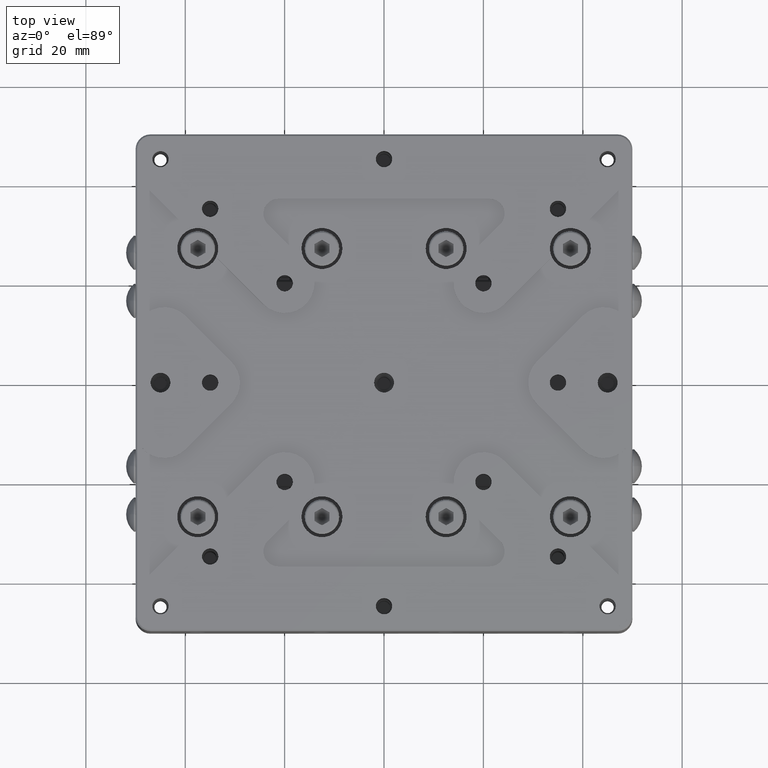
[diagram: clean part render]
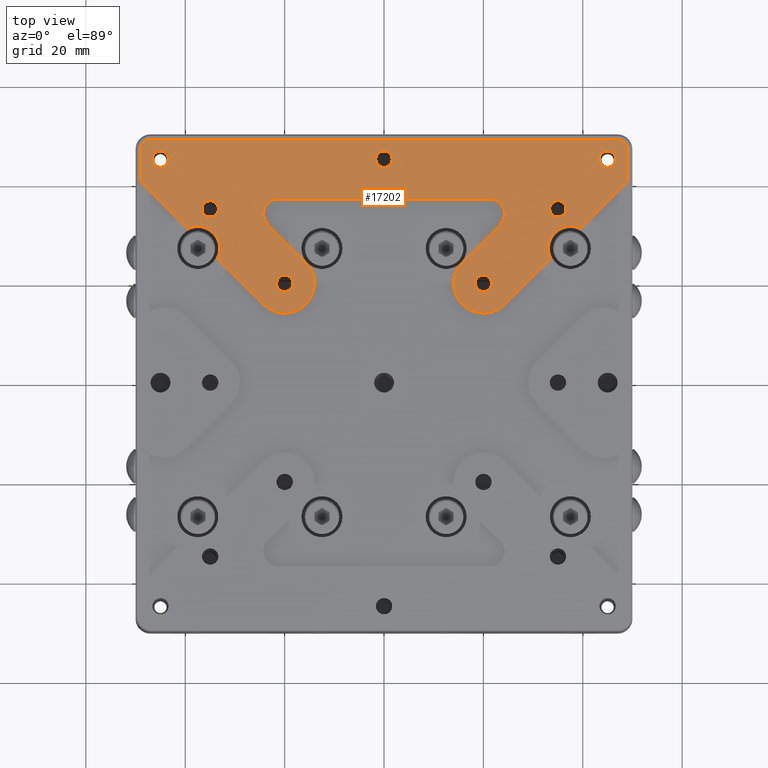
[diagram: same view with one face highlighted and labeled with its STEP entity id]
A machine part, top view. The second image highlights one B-rep face of the part: STEP entity #17202.
In plain terms, the highlighted planar face has unit normal (0, 0, 1).
Its self-contained STEP definition (entity closure, byte-faithful):
#4 = CIRCLE ( 'NONE', #472, 1.649999999999998579 ) ;
#140 = VERTEX_POINT ( 'NONE', #27121 ) ;
#215 = AXIS2_PLACEMENT_3D ( 'NONE', #11590, #5575, #14355 ) ;
#408 = LINE ( 'NONE', #15042, #24687 ) ;
#423 = VERTEX_POINT ( 'NONE', #8501 ) ;
#471 = LINE ( 'NONE', #26034, #18040 ) ;
#472 = AXIS2_PLACEMENT_3D ( 'NONE', #5367, #9293, #11525 ) ;
#671 = EDGE_CURVE ( 'NONE', #20192, #14774, #14392, .T. ) ;
#675 = DIRECTION ( 'NONE',  ( 1.000000000000000000, 0.000000000000000000, 0.000000000000000000 ) ) ;
#807 = EDGE_CURVE ( 'NONE', #20196, #20192, #6365, .T. ) ;
#862 = AXIS2_PLACEMENT_3D ( 'NONE', #22239, #11456, #2793 ) ;
#868 = ORIENTED_EDGE ( 'NONE', *, *, #1262, .T. ) ;
#1100 = CARTESIAN_POINT ( 'NONE',  ( 37.50000000000000000, 27.00000000000000000, 15.50000000000000000 ) ) ;
#1108 = VERTEX_POINT ( 'NONE', #22036 ) ;
#1174 = ORIENTED_EDGE ( 'NONE', *, *, #3505, .T. ) ;
#1232 = ORIENTED_EDGE ( 'NONE', *, *, #21920, .T. ) ;
#1262 = EDGE_CURVE ( 'NONE', #2068, #18202, #7882, .T. ) ;
#1428 = DIRECTION ( 'NONE',  ( 0.000000000000000000, 0.000000000000000000, -1.000000000000000000 ) ) ;
#1512 = DIRECTION ( 'NONE',  ( 0.7071067811869200526, -0.7071067811861749819, 0.000000000000000000 ) ) ;
#1547 = CARTESIAN_POINT ( 'NONE',  ( -21.27207793863999896, 34.00000000000000000, 15.50000000000000000 ) ) ;
#1582 = CARTESIAN_POINT ( 'NONE',  ( -23.39339828219985051, 31.87867965644020174, 15.50000000000000000 ) ) ;
#1595 = CARTESIAN_POINT ( 'NONE',  ( 33.47432539299094856, 24.98904401876064796, 15.50000000000000000 ) ) ;
#1622 = CARTESIAN_POINT ( 'NONE',  ( 35.00000000000000000, 35.00000000000000000, 15.50000000000000000 ) ) ;
#1691 = CARTESIAN_POINT ( 'NONE',  ( 23.39339828219999973, 31.87867965643999923, 15.50000000000000000 ) ) ;
#1721 = CIRCLE ( 'NONE', #18208, 2.999999999999999112 ) ;
#1723 = VECTOR ( 'NONE', #16289, 1000.000000000000000 ) ;
#1751 = DIRECTION ( 'NONE',  ( -0.7071067811865474617, -0.7071067811865474617, 0.000000000000000000 ) ) ;
#1841 = DIRECTION ( 'NONE',  ( 0.7071067811861645458, 0.7071067811869305997, 0.000000000000000000 ) ) ;
#2027 = CIRCLE ( 'NONE', #6947, 1.649999999999998579 ) ;
#2068 = VERTEX_POINT ( 'NONE', #1691 ) ;
#2125 = DIRECTION ( 'NONE',  ( -0.7071067811865480168, 0.7071067811865470176, 0.000000000000000000 ) ) ;
#2267 = CARTESIAN_POINT ( 'NONE',  ( -21.64999999999999858, 20.00000000000000000, 15.50000000000000000 ) ) ;
#2302 = DIRECTION ( 'NONE',  ( 0.000000000000000000, 0.000000000000000000, -1.000000000000000000 ) ) ;
#2337 = FACE_BOUND ( 'NONE', #12126, .T. ) ;
#2475 = DIRECTION ( 'NONE',  ( 0.000000000000000000, 0.000000000000000000, -1.000000000000000000 ) ) ;
#2555 = ORIENTED_EDGE ( 'NONE', *, *, #5559, .T. ) ;
#2605 = EDGE_CURVE ( 'NONE', #27199, #21379, #22049, .T. ) ;
#2628 = EDGE_LOOP ( 'NONE', ( #1174, #26637 ) ) ;
#2637 = AXIS2_PLACEMENT_3D ( 'NONE', #18574, #14095, #27118 ) ;
#2687 = CARTESIAN_POINT ( 'NONE',  ( -39.51095598123934849, 31.02567460700910118, 15.50000000000000000 ) ) ;
#2766 = ORIENTED_EDGE ( 'NONE', *, *, #3122, .T. ) ;
#2793 = DIRECTION ( 'NONE',  ( 1.000000000000000000, 0.000000000000000000, 0.000000000000000000 ) ) ;
#2815 = AXIS2_PLACEMENT_3D ( 'NONE', #22343, #3175, #17989 ) ;
#2843 = AXIS2_PLACEMENT_3D ( 'NONE', #20564, #1428, #5735 ) ;
#2854 = VECTOR ( 'NONE', #14143, 1000.000000000000000 ) ;
#2883 = EDGE_CURVE ( 'NONE', #11598, #11470, #8125, .T. ) ;
#3068 = CIRCLE ( 'NONE', #6634, 2.999999999999999112 ) ;
#3122 = EDGE_CURVE ( 'NONE', #24848, #27341, #471, .T. ) ;
#3146 = ORIENTED_EDGE ( 'NONE', *, *, #671, .T. ) ;
#3174 = DIRECTION ( 'NONE',  ( -1.000000000000000000, 0.000000000000000000, 0.000000000000000000 ) ) ;
#3175 = DIRECTION ( 'NONE',  ( 0.000000000000000000, 0.000000000000000000, -1.000000000000000000 ) ) ;
#3256 = LINE ( 'NONE', #7586, #9092 ) ;
#3405 = DIRECTION ( 'NONE',  ( 1.000000000000000000, 0.000000000000000000, 0.000000000000000000 ) ) ;
#3461 = DIRECTION ( 'NONE',  ( 1.000000000000000000, 0.000000000000000000, 0.000000000000000000 ) ) ;
#3505 = EDGE_CURVE ( 'NONE', #13997, #11284, #3769, .T. ) ;
#3507 = CARTESIAN_POINT ( 'NONE',  ( 33.00000000000000000, 27.00000000000000000, 15.50000000000000000 ) ) ;
#3524 = CARTESIAN_POINT ( 'NONE',  ( 21.27207793863999896, 37.00000000000000000, 15.50000000000000000 ) ) ;
#3545 = DIRECTION ( 'NONE',  ( 0.000000000000000000, 0.000000000000000000, -1.000000000000000000 ) ) ;
#3620 = DIRECTION ( 'NONE',  ( 0.000000000000000000, 0.000000000000000000, -1.000000000000000000 ) ) ;
#3720 = CARTESIAN_POINT ( 'NONE',  ( -49.00000000000000000, 40.51471862575999694, 15.50000000000000000 ) ) ;
#3769 = CIRCLE ( 'NONE', #24319, 1.649999999999998579 ) ;
#3864 = ORIENTED_EDGE ( 'NONE', *, *, #15248, .T. ) ;
#3911 = CIRCLE ( 'NONE', #24467, 1.649999999999998579 ) ;
#3934 = CARTESIAN_POINT ( 'NONE',  ( -36.64999999999999858, 35.00000000000000000, 15.50000000000000000 ) ) ;
#3964 = EDGE_CURVE ( 'NONE', #16226, #13413, #24799, .T. ) ;
#4152 = FACE_BOUND ( 'NONE', #17078, .T. ) ;
#4610 = VECTOR ( 'NONE', #1751, 1000.000000000000114 ) ;
#4895 = CARTESIAN_POINT ( 'NONE',  ( 21.27207793863999896, 34.00000000000000000, 15.50000000000000000 ) ) ;
#4995 = DIRECTION ( 'NONE',  ( 0.000000000000000000, 0.000000000000000000, -1.000000000000000000 ) ) ;
#5133 = ORIENTED_EDGE ( 'NONE', *, *, #24045, .T. ) ;
#5367 = CARTESIAN_POINT ( 'NONE',  ( 20.00000000000000000, 20.00000000000000000, 15.50000000000000000 ) ) ;
#5499 = AXIS2_PLACEMENT_3D ( 'NONE', #1622, #5927, #16819 ) ;
#5509 = VERTEX_POINT ( 'NONE', #13945 ) ;
#5559 = EDGE_CURVE ( 'NONE', #11470, #16792, #11006, .T. ) ;
#5575 = DIRECTION ( 'NONE',  ( 0.000000000000000000, 0.000000000000000000, 1.000000000000000000 ) ) ;
#5735 = DIRECTION ( 'NONE',  ( 1.000000000000000000, 0.000000000000000000, 0.000000000000000000 ) ) ;
#5864 = DIRECTION ( 'NONE',  ( -1.000000000000000000, 0.000000000000000000, 0.000000000000000000 ) ) ;
#5923 = EDGE_LOOP ( 'NONE', ( #10687, #13077 ) ) ;
#5927 = DIRECTION ( 'NONE',  ( 0.000000000000000000, 0.000000000000000000, -1.000000000000000000 ) ) ;
#6011 = VERTEX_POINT ( 'NONE', #8040 ) ;
#6033 = ORIENTED_EDGE ( 'NONE', *, *, #26324, .T. ) ;
#6078 = DIRECTION ( 'NONE',  ( 1.000000000000000000, 0.000000000000000000, 0.000000000000000000 ) ) ;
#6365 = LINE ( 'NONE', #3720, #26042 ) ;
#6521 = DIRECTION ( 'NONE',  ( 1.000000000000000000, 0.000000000000000000, 0.000000000000000000 ) ) ;
#6529 = FACE_BOUND ( 'NONE', #16120, .T. ) ;
#6533 = AXIS2_PLACEMENT_3D ( 'NONE', #26971, #11853, #20386 ) ;
#6551 = ORIENTED_EDGE ( 'NONE', *, *, #12178, .T. ) ;
#6634 = AXIS2_PLACEMENT_3D ( 'NONE', #4895, #9628, #13412 ) ;
#6671 = FACE_BOUND ( 'NONE', #7598, .T. ) ;
#6833 = DIRECTION ( 'NONE',  ( 1.000000000000000000, 0.000000000000000000, 0.000000000000000000 ) ) ;
#6872 = CIRCLE ( 'NONE', #215, 6.000000000000000000 ) ;
#6945 = ORIENTED_EDGE ( 'NONE', *, *, #23659, .T. ) ;
#6947 = AXIS2_PLACEMENT_3D ( 'NONE', #16165, #8190, #10290 ) ;
#7152 = ORIENTED_EDGE ( 'NONE', *, *, #7171, .T. ) ;
#7171 = EDGE_CURVE ( 'NONE', #24566, #24848, #9750, .T. ) ;
#7236 = EDGE_CURVE ( 'NONE', #19551, #2068, #3068, .T. ) ;
#7375 = EDGE_CURVE ( 'NONE', #18202, #5509, #12888, .T. ) ;
#7410 = CARTESIAN_POINT ( 'NONE',  ( 47.00000000000000000, 49.00000000000000000, 15.50000000000000000 ) ) ;
#7539 = ORIENTED_EDGE ( 'NONE', *, *, #17517, .T. ) ;
#7586 = CARTESIAN_POINT ( 'NONE',  ( -33.47432539299000354, 24.98904401875999781, 15.50000000000000000 ) ) ;
#7593 = DIRECTION ( 'NONE',  ( 0.000000000000000000, 0.000000000000000000, 1.000000000000000000 ) ) ;
#7598 = EDGE_LOOP ( 'NONE', ( #6945, #17411 ) ) ;
#7758 = EDGE_CURVE ( 'NONE', #16525, #13983, #18777, .T. ) ;
#7787 = CARTESIAN_POINT ( 'NONE',  ( 35.00000000000000000, 35.00000000000000000, 15.50000000000000000 ) ) ;
#7848 = ORIENTED_EDGE ( 'NONE', *, *, #25615, .T. ) ;
#7882 = LINE ( 'NONE', #27601, #4610 ) ;
#7966 = CIRCLE ( 'NONE', #23601, 2.000000000000001776 ) ;
#8040 = CARTESIAN_POINT ( 'NONE',  ( 43.35000000000000142, 45.00000000000000000, 15.50000000000000000 ) ) ;
#8125 = LINE ( 'NONE', #8267, #2854 ) ;
#8190 = DIRECTION ( 'NONE',  ( 0.000000000000000000, 0.000000000000000000, -1.000000000000000000 ) ) ;
#8267 = CARTESIAN_POINT ( 'NONE',  ( -50.00000000000000000, 49.00000000000000000, 15.50000000000000000 ) ) ;
#8314 = DIRECTION ( 'NONE',  ( 0.000000000000000000, 0.000000000000000000, -1.000000000000000000 ) ) ;
#8351 = DIRECTION ( 'NONE',  ( 0.000000000000000000, -1.000000000000000000, 0.000000000000000000 ) ) ;
#8501 = CARTESIAN_POINT ( 'NONE',  ( 21.64999999999999858, 20.00000000000000000, 15.50000000000000000 ) ) ;
#8894 = DIRECTION ( 'NONE',  ( 0.000000000000000000, 0.000000000000000000, -1.000000000000000000 ) ) ;
#9079 = CARTESIAN_POINT ( 'NONE',  ( -49.00000000000000000, 47.00000000000000000, 15.50000000000000000 ) ) ;
#9092 = VECTOR ( 'NONE', #9821, 1000.000000000000000 ) ;
#9293 = DIRECTION ( 'NONE',  ( 0.000000000000000000, 0.000000000000000000, -1.000000000000000000 ) ) ;
#9330 = CARTESIAN_POINT ( 'NONE',  ( -21.27207793863999896, 34.00000000000000000, 15.50000000000000000 ) ) ;
#9393 = CARTESIAN_POINT ( 'NONE',  ( 36.64999999999999858, 35.00000000000000000, 15.50000000000000000 ) ) ;
#9628 = DIRECTION ( 'NONE',  ( 0.000000000000000000, 0.000000000000000000, -1.000000000000000000 ) ) ;
#9697 = VERTEX_POINT ( 'NONE', #26308 ) ;
#9750 = CIRCLE ( 'NONE', #862, 6.000000000000000000 ) ;
#9821 = DIRECTION ( 'NONE',  ( 0.7071067811861645458, -0.7071067811869305997, 0.000000000000000000 ) ) ;
#9978 = CIRCLE ( 'NONE', #2843, 1.649999999999998579 ) ;
#10204 = DIRECTION ( 'NONE',  ( 0.000000000000000000, 0.000000000000000000, -1.000000000000000000 ) ) ;
#10290 = DIRECTION ( 'NONE',  ( 1.000000000000000000, 0.000000000000000000, 0.000000000000000000 ) ) ;
#10323 = AXIS2_PLACEMENT_3D ( 'NONE', #14872, #8314, #25808 ) ;
#10478 = AXIS2_PLACEMENT_3D ( 'NONE', #1547, #3620, #16195 ) ;
#10615 = CARTESIAN_POINT ( 'NONE',  ( 37.50000000000000000, 27.00000000000000000, 15.50000000000000000 ) ) ;
#10625 = CARTESIAN_POINT ( 'NONE',  ( -33.47432539299290255, 24.98904401875790171, 15.50000000000000000 ) ) ;
#10687 = ORIENTED_EDGE ( 'NONE', *, *, #15940, .T. ) ;
#10715 = DIRECTION ( 'NONE',  ( 1.000000000000000000, 0.000000000000000000, 0.000000000000000000 ) ) ;
#10784 = ORIENTED_EDGE ( 'NONE', *, *, #12240, .T. ) ;
#10823 = CARTESIAN_POINT ( 'NONE',  ( -20.00000000000000000, 20.00000000000000000, 15.50000000000000000 ) ) ;
#10864 = FACE_BOUND ( 'NONE', #5923, .T. ) ;
#10935 = CARTESIAN_POINT ( 'NONE',  ( 1.649999999999999911, 45.00000000000000000, 15.50000000000000000 ) ) ;
#10945 = VERTEX_POINT ( 'NONE', #15274 ) ;
#11006 = CIRCLE ( 'NONE', #6533, 2.000000000000001776 ) ;
#11008 = CARTESIAN_POINT ( 'NONE',  ( -24.27207793864000251, 34.00000000000000000, 15.50000000000000000 ) ) ;
#11124 = ORIENTED_EDGE ( 'NONE', *, *, #17555, .T. ) ;
#11143 = CARTESIAN_POINT ( 'NONE',  ( -15.75735931287999847, 24.24264068711999798, 15.50000000000000000 ) ) ;
#11231 = CIRCLE ( 'NONE', #10323, 1.649999999999999911 ) ;
#11284 = VERTEX_POINT ( 'NONE', #3934 ) ;
#11450 = CARTESIAN_POINT ( 'NONE',  ( -14.00000000000000000, 20.00000000000000000, 15.50000000000000000 ) ) ;
#11456 = DIRECTION ( 'NONE',  ( 0.000000000000000000, 0.000000000000000000, 1.000000000000000000 ) ) ;
#11470 = VERTEX_POINT ( 'NONE', #21702 ) ;
#11525 = DIRECTION ( 'NONE',  ( 1.000000000000000000, 0.000000000000000000, 0.000000000000000000 ) ) ;
#11564 = DIRECTION ( 'NONE',  ( 0.000000000000000000, 0.000000000000000000, -1.000000000000000000 ) ) ;
#11590 = CARTESIAN_POINT ( 'NONE',  ( -20.00000000000000000, 20.00000000000000000, 15.50000000000000000 ) ) ;
#11598 = VERTEX_POINT ( 'NONE', #7410 ) ;
#11620 = CARTESIAN_POINT ( 'NONE',  ( -49.00000000000000000, 40.51471862575999694, 15.50000000000000000 ) ) ;
#11791 = DIRECTION ( 'NONE',  ( -1.000000000000000000, 0.000000000000000000, 0.000000000000000000 ) ) ;
#11815 = VECTOR ( 'NONE', #8351, 1000.000000000000000 ) ;
#11853 = DIRECTION ( 'NONE',  ( 0.000000000000000000, 0.000000000000000000, 1.000000000000000000 ) ) ;
#11888 = ORIENTED_EDGE ( 'NONE', *, *, #807, .T. ) ;
#11975 = VERTEX_POINT ( 'NONE', #10935 ) ;
#12126 = EDGE_LOOP ( 'NONE', ( #26538, #20200 ) ) ;
#12178 = EDGE_CURVE ( 'NONE', #25082, #18723, #14378, .T. ) ;
#12237 = CARTESIAN_POINT ( 'NONE',  ( -43.35000000000000142, 45.00000000000000000, 15.50000000000000000 ) ) ;
#12240 = EDGE_CURVE ( 'NONE', #10945, #19551, #408, .T. ) ;
#12266 = CIRCLE ( 'NONE', #10478, 2.999999999999999112 ) ;
#12395 = CARTESIAN_POINT ( 'NONE',  ( 49.00000000000000000, 47.00000000000000000, 15.50000000000000000 ) ) ;
#12543 = AXIS2_PLACEMENT_3D ( 'NONE', #15333, #17289, #27515 ) ;
#12669 = PLANE ( 'NONE',  #12543 ) ;
#12690 = VECTOR ( 'NONE', #1841, 1000.000000000000000 ) ;
#12807 = FACE_BOUND ( 'NONE', #2628, .T. ) ;
#12876 = CIRCLE ( 'NONE', #13781, 1.649999999999999911 ) ;
#12888 = CIRCLE ( 'NONE', #2637, 6.000000000000001776 ) ;
#12904 = EDGE_CURVE ( 'NONE', #14774, #9697, #3256, .T. ) ;
#12950 = FACE_BOUND ( 'NONE', #24737, .T. ) ;
#13077 = ORIENTED_EDGE ( 'NONE', *, *, #24488, .T. ) ;
#13166 = CARTESIAN_POINT ( 'NONE',  ( -20.00000000000000000, 20.00000000000000000, 15.50000000000000000 ) ) ;
#13312 = CARTESIAN_POINT ( 'NONE',  ( -1.649999999999999911, 45.00000000000000000, 15.50000000000000000 ) ) ;
#13334 = ORIENTED_EDGE ( 'NONE', *, *, #25583, .T. ) ;
#13412 = DIRECTION ( 'NONE',  ( -1.000000000000000000, 0.000000000000000000, 0.000000000000000000 ) ) ;
#13413 = VERTEX_POINT ( 'NONE', #3507 ) ;
#13415 = EDGE_CURVE ( 'NONE', #18723, #25082, #9978, .T. ) ;
#13683 = CARTESIAN_POINT ( 'NONE',  ( 15.75735931288034841, 24.24264068711964981, 15.50000000000000000 ) ) ;
#13781 = AXIS2_PLACEMENT_3D ( 'NONE', #20324, #3545, #3405 ) ;
#13945 = CARTESIAN_POINT ( 'NONE',  ( 24.24264068712115261, 15.75735931288114955, 15.50000000000000000 ) ) ;
#13983 = VERTEX_POINT ( 'NONE', #12395 ) ;
#13997 = VERTEX_POINT ( 'NONE', #18832 ) ;
#14095 = DIRECTION ( 'NONE',  ( 0.000000000000000000, 0.000000000000000000, 1.000000000000000000 ) ) ;
#14131 = LINE ( 'NONE', #27291, #12690 ) ;
#14143 = DIRECTION ( 'NONE',  ( -1.000000000000000000, 0.000000000000000000, 0.000000000000000000 ) ) ;
#14295 = DIRECTION ( 'NONE',  ( 0.000000000000000000, 1.000000000000000000, 0.000000000000000000 ) ) ;
#14321 = CIRCLE ( 'NONE', #15698, 1.649999999999998579 ) ;
#14355 = DIRECTION ( 'NONE',  ( 1.000000000000000000, 0.000000000000000000, 0.000000000000000000 ) ) ;
#14378 = CIRCLE ( 'NONE', #25555, 1.649999999999998579 ) ;
#14392 = CIRCLE ( 'NONE', #2815, 4.499999999999997335 ) ;
#14701 = ORIENTED_EDGE ( 'NONE', *, *, #21554, .T. ) ;
#14774 = VERTEX_POINT ( 'NONE', #10625 ) ;
#14872 = CARTESIAN_POINT ( 'NONE',  ( 0.000000000000000000, 45.00000000000000000, 15.50000000000000000 ) ) ;
#14877 = CIRCLE ( 'NONE', #18524, 1.649999999999998579 ) ;
#15042 = CARTESIAN_POINT ( 'NONE',  ( -50.00000000000000000, 37.00000000000000000, 15.50000000000000000 ) ) ;
#15080 = EDGE_CURVE ( 'NONE', #9697, #24566, #6872, .T. ) ;
#15248 = EDGE_CURVE ( 'NONE', #16792, #20196, #23049, .T. ) ;
#15274 = CARTESIAN_POINT ( 'NONE',  ( -21.27207793863999896, 37.00000000000000000, 15.50000000000000000 ) ) ;
#15333 = CARTESIAN_POINT ( 'NONE',  ( -50.00000000000000000, 50.00000000000000000, 15.50000000000000000 ) ) ;
#15698 = AXIS2_PLACEMENT_3D ( 'NONE', #10823, #2302, #6078 ) ;
#15940 = EDGE_CURVE ( 'NONE', #423, #1108, #4, .T. ) ;
#16120 = EDGE_LOOP ( 'NONE', ( #26470, #6551 ) ) ;
#16165 = CARTESIAN_POINT ( 'NONE',  ( 45.00000000000000000, 45.00000000000000000, 15.50000000000000000 ) ) ;
#16173 = DIRECTION ( 'NONE',  ( 0.000000000000000000, 0.000000000000000000, -1.000000000000000000 ) ) ;
#16195 = DIRECTION ( 'NONE',  ( -1.000000000000000000, 0.000000000000000000, 0.000000000000000000 ) ) ;
#16226 = VERTEX_POINT ( 'NONE', #1595 ) ;
#16261 = ORIENTED_EDGE ( 'NONE', *, *, #2883, .T. ) ;
#16289 = DIRECTION ( 'NONE',  ( 0.7071067811869200526, 0.7071067811861749819, 0.000000000000000000 ) ) ;
#16301 = ORIENTED_EDGE ( 'NONE', *, *, #25070, .T. ) ;
#16525 = VERTEX_POINT ( 'NONE', #24772 ) ;
#16705 = CARTESIAN_POINT ( 'NONE',  ( -46.64999999999999858, 45.00000000000000000, 15.50000000000000000 ) ) ;
#16730 = AXIS2_PLACEMENT_3D ( 'NONE', #10615, #10204, #5864 ) ;
#16792 = VERTEX_POINT ( 'NONE', #9079 ) ;
#16819 = DIRECTION ( 'NONE',  ( 1.000000000000000000, 0.000000000000000000, 0.000000000000000000 ) ) ;
#16830 = CIRCLE ( 'NONE', #23100, 1.649999999999998579 ) ;
#16864 = CARTESIAN_POINT ( 'NONE',  ( -45.00000000000000000, 45.00000000000000000, 15.50000000000000000 ) ) ;
#16870 = FACE_OUTER_BOUND ( 'NONE', #25803, .T. ) ;
#16913 = ORIENTED_EDGE ( 'NONE', *, *, #15080, .T. ) ;
#17078 = EDGE_LOOP ( 'NONE', ( #7539, #5133 ) ) ;
#17202 = ADVANCED_FACE ( 'NONE', ( #16870, #6529, #12950, #2337, #12807, #6671, #4152, #10864 ), #12669, .T. ) ;
#17289 = DIRECTION ( 'NONE',  ( 0.000000000000000000, 0.000000000000000000, 1.000000000000000000 ) ) ;
#17315 = CARTESIAN_POINT ( 'NONE',  ( -35.00000000000000000, 35.00000000000000000, 15.50000000000000000 ) ) ;
#17411 = ORIENTED_EDGE ( 'NONE', *, *, #2605, .T. ) ;
#17517 = EDGE_CURVE ( 'NONE', #20045, #24118, #14321, .T. ) ;
#17555 = EDGE_CURVE ( 'NONE', #25872, #11975, #11231, .T. ) ;
#17766 = CIRCLE ( 'NONE', #21351, 4.499999999999997335 ) ;
#17882 = DIRECTION ( 'NONE',  ( 0.000000000000000000, 0.000000000000000000, -1.000000000000000000 ) ) ;
#17989 = DIRECTION ( 'NONE',  ( -1.000000000000000000, 0.000000000000000000, 0.000000000000000000 ) ) ;
#18040 = VECTOR ( 'NONE', #2125, 1000.000000000000000 ) ;
#18202 = VERTEX_POINT ( 'NONE', #13683 ) ;
#18208 = AXIS2_PLACEMENT_3D ( 'NONE', #9330, #4995, #26680 ) ;
#18501 = CARTESIAN_POINT ( 'NONE',  ( 47.00000000000000000, 47.00000000000000000, 15.50000000000000000 ) ) ;
#18524 = AXIS2_PLACEMENT_3D ( 'NONE', #24332, #19708, #26016 ) ;
#18574 = CARTESIAN_POINT ( 'NONE',  ( 20.00000000000000000, 20.00000000000000000, 15.50000000000000000 ) ) ;
#18676 = CARTESIAN_POINT ( 'NONE',  ( 39.51095598124000219, 31.02567460701000002, 15.50000000000000000 ) ) ;
#18723 = VERTEX_POINT ( 'NONE', #12237 ) ;
#18777 = LINE ( 'NONE', #21018, #23654 ) ;
#18832 = CARTESIAN_POINT ( 'NONE',  ( -33.34999999999999432, 35.00000000000000000, 15.50000000000000000 ) ) ;
#19042 = DIRECTION ( 'NONE',  ( 0.000000000000000000, 0.000000000000000000, -1.000000000000000000 ) ) ;
#19175 = ORIENTED_EDGE ( 'NONE', *, *, #3964, .T. ) ;
#19230 = CARTESIAN_POINT ( 'NONE',  ( -18.35000000000000142, 20.00000000000000000, 15.50000000000000000 ) ) ;
#19496 = AXIS2_PLACEMENT_3D ( 'NONE', #7787, #16173, #3461 ) ;
#19522 = CIRCLE ( 'NONE', #20868, 1.649999999999998579 ) ;
#19551 = VERTEX_POINT ( 'NONE', #3524 ) ;
#19708 = DIRECTION ( 'NONE',  ( 0.000000000000000000, 0.000000000000000000, -1.000000000000000000 ) ) ;
#20045 = VERTEX_POINT ( 'NONE', #19230 ) ;
#20079 = ORIENTED_EDGE ( 'NONE', *, *, #26386, .T. ) ;
#20192 = VERTEX_POINT ( 'NONE', #2687 ) ;
#20196 = VERTEX_POINT ( 'NONE', #11620 ) ;
#20200 = ORIENTED_EDGE ( 'NONE', *, *, #22439, .T. ) ;
#20324 = CARTESIAN_POINT ( 'NONE',  ( 0.000000000000000000, 45.00000000000000000, 15.50000000000000000 ) ) ;
#20386 = DIRECTION ( 'NONE',  ( -1.000000000000000000, 0.000000000000000000, 0.000000000000000000 ) ) ;
#20564 = CARTESIAN_POINT ( 'NONE',  ( -45.00000000000000000, 45.00000000000000000, 15.50000000000000000 ) ) ;
#20579 = ORIENTED_EDGE ( 'NONE', *, *, #7375, .T. ) ;
#20617 = EDGE_CURVE ( 'NONE', #140, #6011, #14877, .T. ) ;
#20847 = CIRCLE ( 'NONE', #19496, 1.649999999999998579 ) ;
#20868 = AXIS2_PLACEMENT_3D ( 'NONE', #13166, #19042, #23377 ) ;
#21018 = CARTESIAN_POINT ( 'NONE',  ( 49.00000000000000000, 50.00000000000000000, 15.50000000000000000 ) ) ;
#21021 = VERTEX_POINT ( 'NONE', #11008 ) ;
#21113 = CARTESIAN_POINT ( 'NONE',  ( 39.51095598123934849, 31.02567460700910118, 15.50000000000000000 ) ) ;
#21351 = AXIS2_PLACEMENT_3D ( 'NONE', #1100, #11564, #3174 ) ;
#21379 = VERTEX_POINT ( 'NONE', #9393 ) ;
#21554 = EDGE_CURVE ( 'NONE', #5509, #16226, #14131, .T. ) ;
#21702 = CARTESIAN_POINT ( 'NONE',  ( -47.00000000000000000, 49.00000000000000000, 15.50000000000000000 ) ) ;
#21920 = EDGE_CURVE ( 'NONE', #27341, #21021, #12266, .T. ) ;
#22007 = CARTESIAN_POINT ( 'NONE',  ( 33.34999999999999432, 35.00000000000000000, 15.50000000000000000 ) ) ;
#22036 = CARTESIAN_POINT ( 'NONE',  ( 18.35000000000000142, 20.00000000000000000, 15.50000000000000000 ) ) ;
#22049 = CIRCLE ( 'NONE', #5499, 1.649999999999998579 ) ;
#22239 = CARTESIAN_POINT ( 'NONE',  ( -20.00000000000000000, 20.00000000000000000, 15.50000000000000000 ) ) ;
#22343 = CARTESIAN_POINT ( 'NONE',  ( -37.50000000000000000, 27.00000000000000000, 15.50000000000000000 ) ) ;
#22439 = EDGE_CURVE ( 'NONE', #6011, #140, #2027, .T. ) ;
#22912 = CARTESIAN_POINT ( 'NONE',  ( -49.00000000000000000, 50.00000000000000000, 15.50000000000000000 ) ) ;
#23049 = LINE ( 'NONE', #22912, #11815 ) ;
#23100 = AXIS2_PLACEMENT_3D ( 'NONE', #26383, #8894, #675 ) ;
#23377 = DIRECTION ( 'NONE',  ( 1.000000000000000000, 0.000000000000000000, 0.000000000000000000 ) ) ;
#23601 = AXIS2_PLACEMENT_3D ( 'NONE', #18501, #7593, #11791 ) ;
#23654 = VECTOR ( 'NONE', #14295, 1000.000000000000000 ) ;
#23659 = EDGE_CURVE ( 'NONE', #21379, #27199, #20847, .T. ) ;
#23742 = ORIENTED_EDGE ( 'NONE', *, *, #7236, .T. ) ;
#23920 = EDGE_CURVE ( 'NONE', #11284, #13997, #16830, .T. ) ;
#24045 = EDGE_CURVE ( 'NONE', #24118, #20045, #19522, .T. ) ;
#24118 = VERTEX_POINT ( 'NONE', #2267 ) ;
#24202 = VERTEX_POINT ( 'NONE', #21113 ) ;
#24319 = AXIS2_PLACEMENT_3D ( 'NONE', #17315, #25441, #6833 ) ;
#24332 = CARTESIAN_POINT ( 'NONE',  ( 45.00000000000000000, 45.00000000000000000, 15.50000000000000000 ) ) ;
#24467 = AXIS2_PLACEMENT_3D ( 'NONE', #26838, #17882, #26427 ) ;
#24488 = EDGE_CURVE ( 'NONE', #1108, #423, #3911, .T. ) ;
#24566 = VERTEX_POINT ( 'NONE', #11450 ) ;
#24687 = VECTOR ( 'NONE', #10715, 1000.000000000000000 ) ;
#24737 = EDGE_LOOP ( 'NONE', ( #7848, #11124 ) ) ;
#24772 = CARTESIAN_POINT ( 'NONE',  ( 49.00000000000000000, 40.51471862575999694, 15.50000000000000000 ) ) ;
#24799 = CIRCLE ( 'NONE', #16730, 4.499999999999997335 ) ;
#24848 = VERTEX_POINT ( 'NONE', #11143 ) ;
#25070 = EDGE_CURVE ( 'NONE', #24202, #16525, #27344, .T. ) ;
#25082 = VERTEX_POINT ( 'NONE', #16705 ) ;
#25441 = DIRECTION ( 'NONE',  ( 0.000000000000000000, 0.000000000000000000, -1.000000000000000000 ) ) ;
#25555 = AXIS2_PLACEMENT_3D ( 'NONE', #16864, #2475, #6521 ) ;
#25583 = EDGE_CURVE ( 'NONE', #13983, #11598, #7966, .T. ) ;
#25615 = EDGE_CURVE ( 'NONE', #11975, #25872, #12876, .T. ) ;
#25636 = ORIENTED_EDGE ( 'NONE', *, *, #7758, .T. ) ;
#25803 = EDGE_LOOP ( 'NONE', ( #14701, #19175, #6033, #16301, #25636, #13334, #16261, #2555, #3864, #11888, #3146, #27086, #16913, #7152, #2766, #1232, #20079, #10784, #23742, #868, #20579 ) ) ;
#25808 = DIRECTION ( 'NONE',  ( 1.000000000000000000, 0.000000000000000000, 0.000000000000000000 ) ) ;
#25872 = VERTEX_POINT ( 'NONE', #13312 ) ;
#26016 = DIRECTION ( 'NONE',  ( 1.000000000000000000, 0.000000000000000000, 0.000000000000000000 ) ) ;
#26034 = CARTESIAN_POINT ( 'NONE',  ( -15.75735931287999847, 24.24264068711999798, 15.50000000000000000 ) ) ;
#26042 = VECTOR ( 'NONE', #1512, 1000.000000000000000 ) ;
#26308 = CARTESIAN_POINT ( 'NONE',  ( -24.24264068712080089, 15.75735931288150127, 15.50000000000000000 ) ) ;
#26324 = EDGE_CURVE ( 'NONE', #13413, #24202, #17766, .T. ) ;
#26383 = CARTESIAN_POINT ( 'NONE',  ( -35.00000000000000000, 35.00000000000000000, 15.50000000000000000 ) ) ;
#26386 = EDGE_CURVE ( 'NONE', #21021, #10945, #1721, .T. ) ;
#26427 = DIRECTION ( 'NONE',  ( 1.000000000000000000, 0.000000000000000000, 0.000000000000000000 ) ) ;
#26470 = ORIENTED_EDGE ( 'NONE', *, *, #13415, .T. ) ;
#26538 = ORIENTED_EDGE ( 'NONE', *, *, #20617, .T. ) ;
#26637 = ORIENTED_EDGE ( 'NONE', *, *, #23920, .T. ) ;
#26680 = DIRECTION ( 'NONE',  ( -1.000000000000000000, 0.000000000000000000, 0.000000000000000000 ) ) ;
#26838 = CARTESIAN_POINT ( 'NONE',  ( 20.00000000000000000, 20.00000000000000000, 15.50000000000000000 ) ) ;
#26971 = CARTESIAN_POINT ( 'NONE',  ( -47.00000000000000000, 47.00000000000000000, 15.50000000000000000 ) ) ;
#27086 = ORIENTED_EDGE ( 'NONE', *, *, #12904, .T. ) ;
#27118 = DIRECTION ( 'NONE',  ( 1.000000000000000000, 0.000000000000000000, 0.000000000000000000 ) ) ;
#27121 = CARTESIAN_POINT ( 'NONE',  ( 46.64999999999999858, 45.00000000000000000, 15.50000000000000000 ) ) ;
#27199 = VERTEX_POINT ( 'NONE', #22007 ) ;
#27291 = CARTESIAN_POINT ( 'NONE',  ( 24.24264068711999798, 15.75735931287999847, 15.50000000000000000 ) ) ;
#27341 = VERTEX_POINT ( 'NONE', #1582 ) ;
#27344 = LINE ( 'NONE', #18676, #1723 ) ;
#27515 = DIRECTION ( 'NONE',  ( 1.000000000000000000, 0.000000000000000000, 0.000000000000000000 ) ) ;
#27601 = CARTESIAN_POINT ( 'NONE',  ( 23.39339828219999973, 31.87867965643999923, 15.50000000000000000 ) ) ;